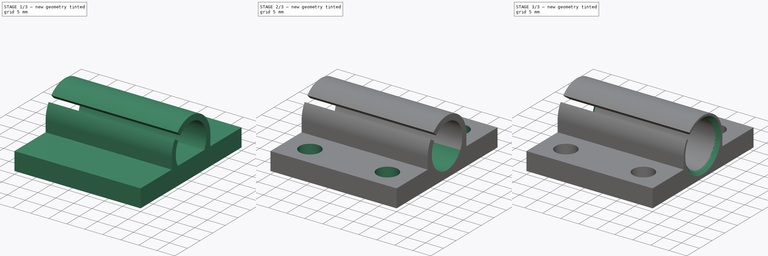
[diagram: build sequence overview — one tinted view per stage of 3, left to right]
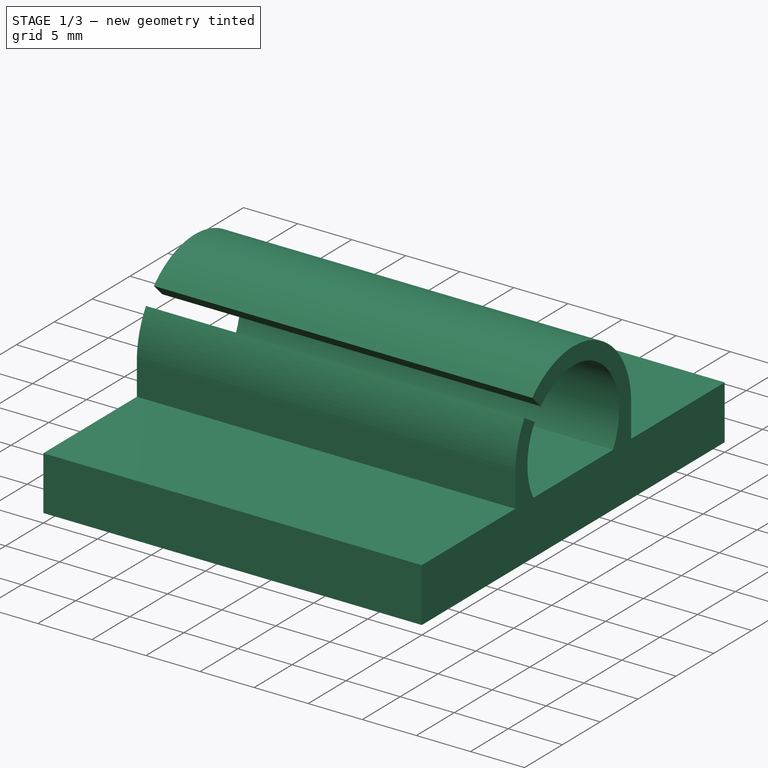
[diagram: stage 1 of 3 — iso view after this stage's code; geometry added in this stage tinted green]
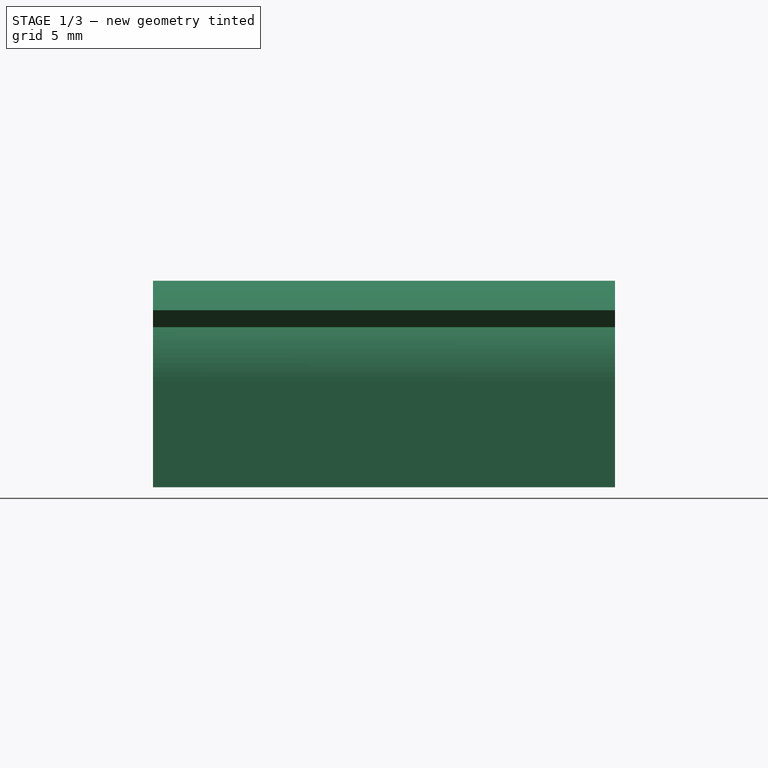
[diagram: stage 1 of 3 — front view after this stage's code; geometry added in this stage tinted green]
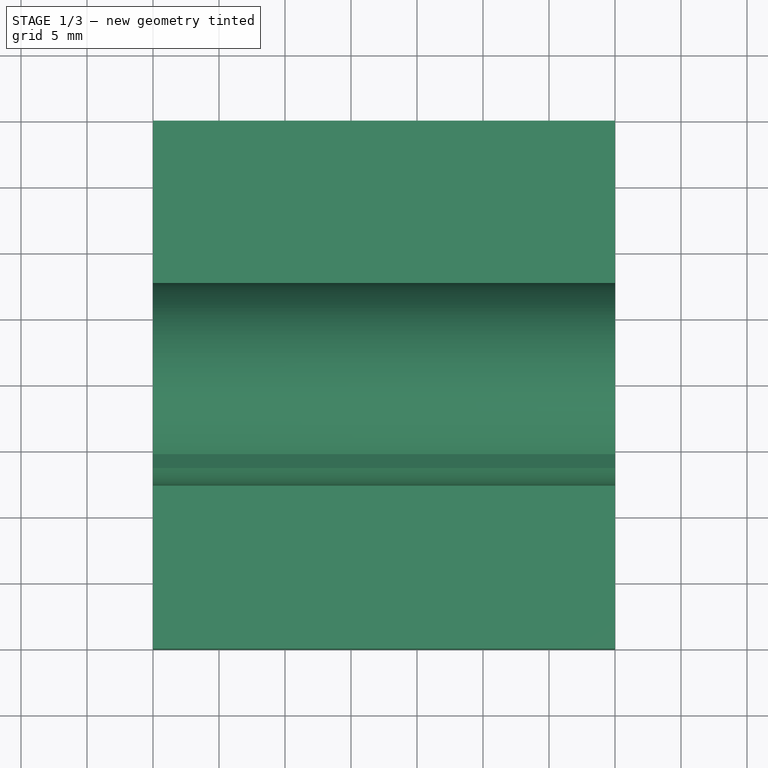
[diagram: stage 1 of 3 — top view after this stage's code; geometry added in this stage tinted green]
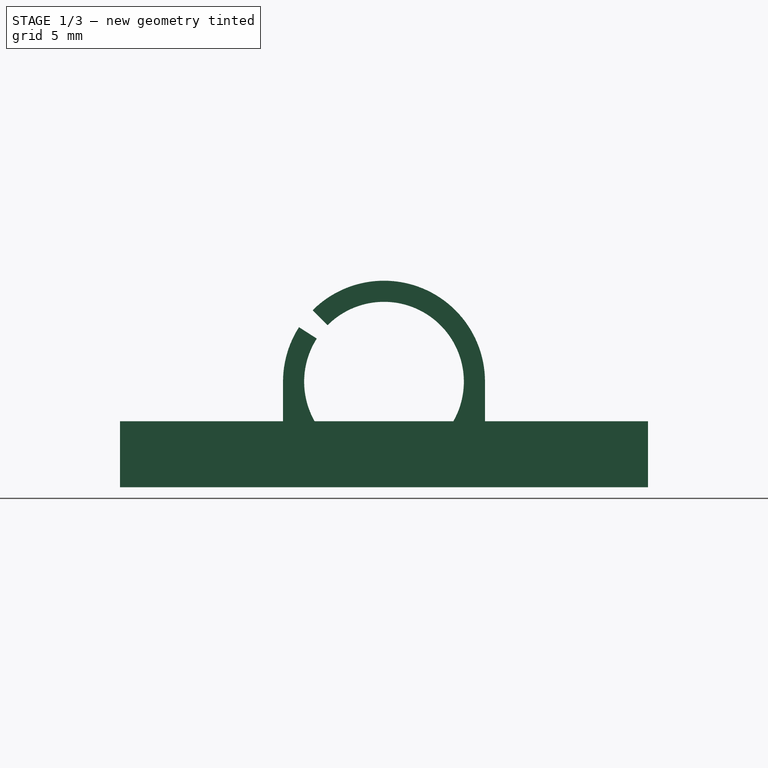
[diagram: stage 1 of 3 — right view after this stage's code; geometry added in this stage tinted green]
FCSTD DOCUMENT  (FreeCAD 0.14R3702 (Git))
Label: y-carrier
License: CC-BY 3.0
LicenseURL: http://creativecommons.org/licenses/by/3.0/
objects: Sketcher::SketchObject×5, PartDesign::Pocket×3, PartDesign::Chamfer×2, Part::Box×1, PartDesign::Pad×1
note: 16 computed .brp shape members not serialized (recipe doc carries the construction recipe); baked Part::Feature solids carry a one-line shape summary decoded from their .brp

FEATURE [Part::Box] Box  label="Cube"
  Height = 5
  Length = 35
  Width = 40
FEATURE [Sketcher::SketchObject] Sketch
  ExternalGeometry = -> [Box]
  Placement = pos=(35,0,0) rot=(0.57735,0.57735,0.57735;2.0944rad)
  Support = -> Box [Face2]
  sketch-geometry (10):
    g0: LineSegment [constr] StartX=0 StartY=8 StartZ=0 EndX=20 EndY=8 EndZ=0
    g1: LineSegment [constr] StartX=40 StartY=8 StartZ=0 EndX=20 EndY=8 EndZ=0
    g2: ArcOfCircle CenterX=20 CenterY=8 CenterZ=0 NormalX=0 NormalY=0 NormalZ=1 Radius=6.05 StartAngle=2.57149 EndAngle=8.63938
    g3: ArcOfCircle CenterX=20 CenterY=8 CenterZ=0 NormalX=0 NormalY=0 NormalZ=1 Radius=7.65 StartAngle=2.57149 EndAngle=3.14159
    g4: LineSegment StartX=13.5599 StartY=12.1289 StartZ=0 EndX=14.9068 EndY=11.2653 EndZ=0
    g5: LineSegment StartX=12.35 StartY=0 StartZ=0 EndX=12.35 EndY=7.99999 EndZ=0
    g6: LineSegment StartX=15.722 StartY=12.278 StartZ=0 EndX=14.5906 EndY=13.4094 EndZ=0
    g7: ArcOfCircle CenterX=20 CenterY=8 CenterZ=0 NormalX=0 NormalY=0 NormalZ=1 Radius=7.65 StartAngle=6.28318 EndAngle=8.63938
    g8: LineSegment StartX=27.65 StartY=7.99999 StartZ=0 EndX=27.65 EndY=0 EndZ=0
    g9: LineSegment StartX=12.35 StartY=0 StartZ=0 EndX=27.65 EndY=0 EndZ=0
  constraints (31):
    c: PointOnObject(g0,g-2)
    c: Horizontal(g0)
    c: PointOnObject(g1,g-3)
    c: Horizontal(g1)
    c: Equal(g1,g0)
    c: Coincident(g2,g0)
    c: Radius(g2) = 6.05
    c: Coincident(g1,g0)
    c: Coincident(g3,g0)
    c: Distance(g2,g2) = 1.3
    c: Coincident(g4,g3)
    c: Coincident(g4,g2)
    c: Perpendicular(g4,g2)
    c: Distance(g4) = 1.6
    c: Vertical(g5)
    c: Tangent(g3,g5)
    c: Coincident(g3,g5)
    c: Coincident(g6,g2)
    c: Coincident(g7,g0)
    c: Coincident(g7,g6)
    c: Equal(g6,g4)
    c: Perpendicular(g6,g2)
    c: Coincident(g8,g7)
    c: Tangent(g7,g8)
    c: Vertical(g8)
    c: Angle(g-4,g6) = 2.35619
    c: Coincident(g9,g5)
    c: Coincident(g9,g8)
    c: Horizontal(g9)
    c: PointOnObject(g5,g-1)
    c: Distance(g0,g9) = 8
FEATURE [PartDesign::Pad] Pad
  Length = 35
  Length2 = 100
  Reversed = true
  Sketch = -> Sketch
  Type = 0
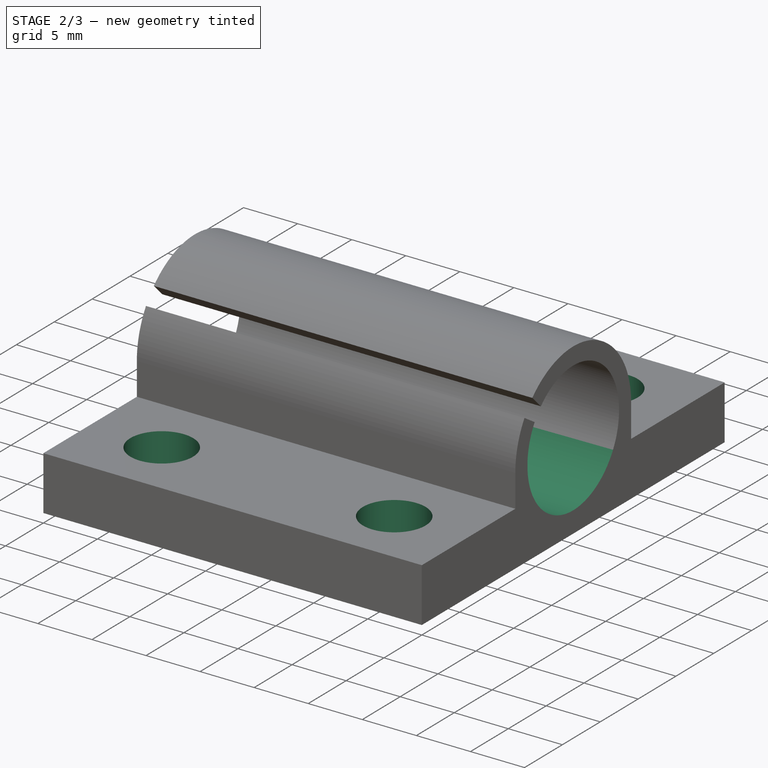
[diagram: stage 2 of 3 — iso view after this stage's code; geometry added in this stage tinted green]
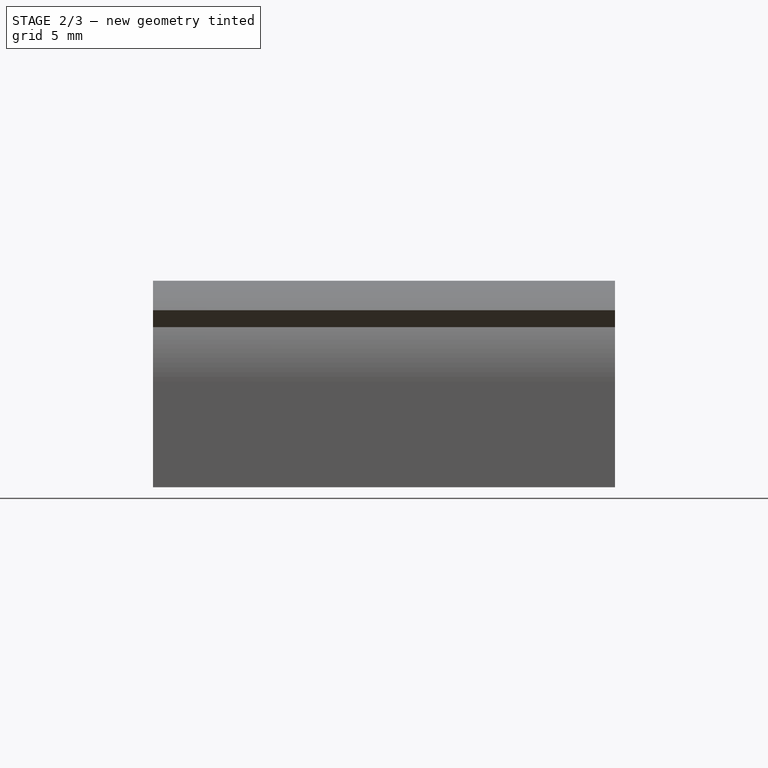
[diagram: stage 2 of 3 — front view after this stage's code; geometry added in this stage tinted green]
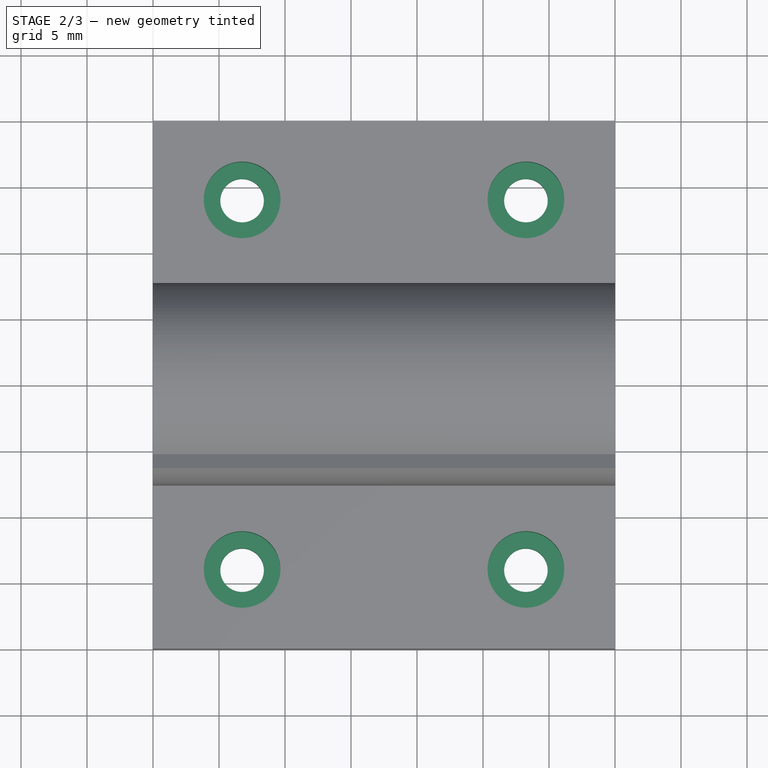
[diagram: stage 2 of 3 — top view after this stage's code; geometry added in this stage tinted green]
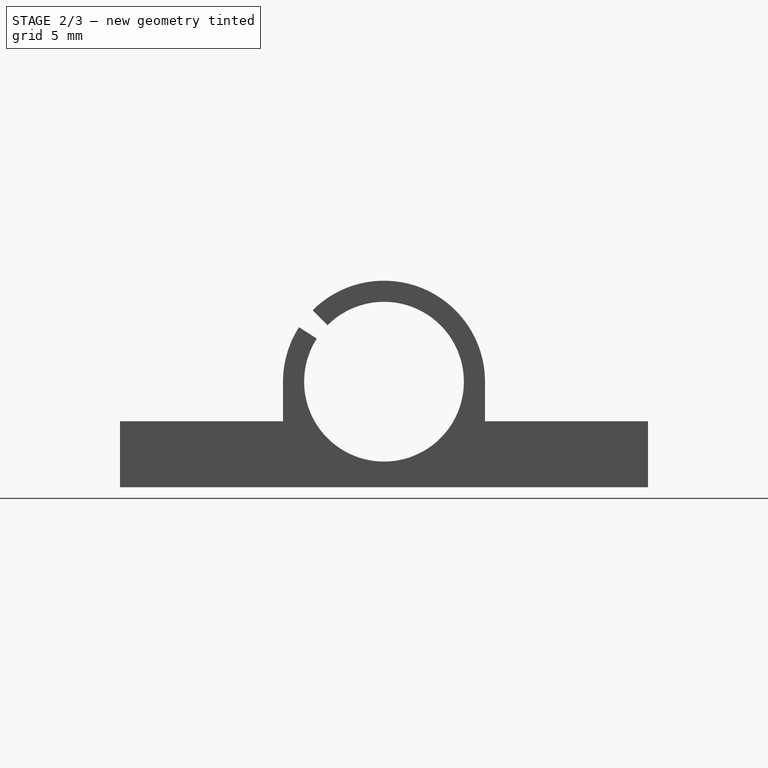
[diagram: stage 2 of 3 — right view after this stage's code; geometry added in this stage tinted green]
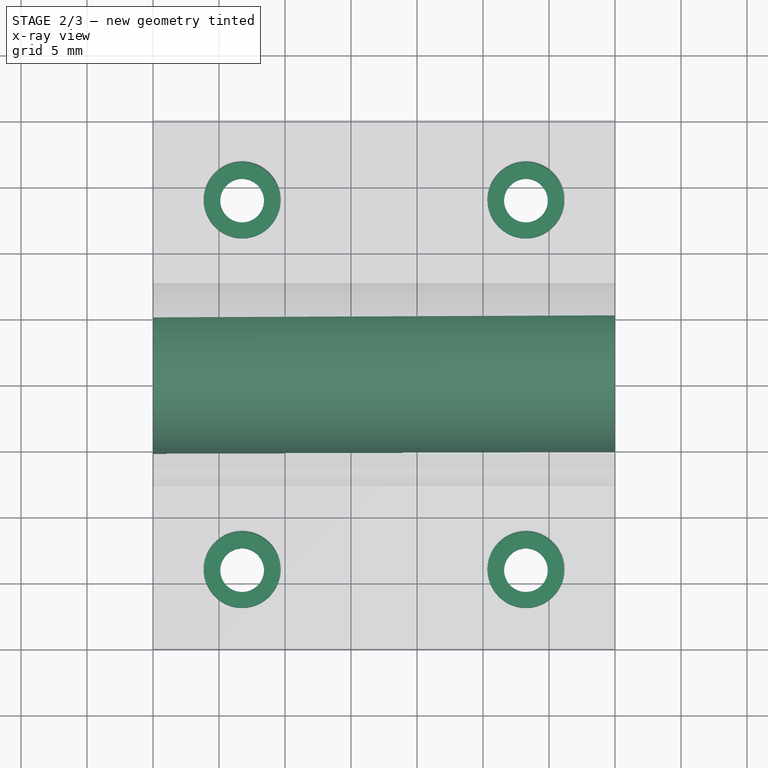
[diagram: stage 2 of 3 — x-ray composite at the top view; earlier geometry ghosted, this stage's added geometry solid]
FEATURE [Sketcher::SketchObject] Sketch001
  ExternalGeometry = -> [Pad]
  Placement = pos=(35,0,0) rot=(0.57735,0.57735,0.57735;2.0944rad)
  Support = -> Pad [Face7]
  sketch-geometry (1):
    g0: Circle CenterX=20 CenterY=8 CenterZ=0 NormalX=0 NormalY=0 NormalZ=1 Radius=6.05
  constraints (2):
    c: Coincident(g0,g-3)
    c: PointOnObject(g-3,g0)
FEATURE [PartDesign::Pocket] Pocket
  Length = 5
  Sketch = -> Sketch001
  Type = 1
FEATURE [Sketcher::SketchObject] Sketch002
  Placement = pos=(0,0,0) rot=(1,0,0;3.14159rad)
  Support = -> Pocket [Face2]
  sketch-geometry (7):
    g0: LineSegment [constr] StartX=6.75 StartY=-6 StartZ=0 EndX=28.25 EndY=-6 EndZ=0
    g1: LineSegment [constr] StartX=6.75 StartY=-6 StartZ=0 EndX=6.75 EndY=-34 EndZ=0
    g2: LineSegment [constr] StartX=6.75 StartY=-34 StartZ=0 EndX=28.25 EndY=-34 EndZ=0
    g3: Circle CenterX=6.75 CenterY=-6 CenterZ=0 NormalX=0 NormalY=0 NormalZ=1 Radius=1.65
    g4: Circle CenterX=28.25 CenterY=-6 CenterZ=0 NormalX=0 NormalY=0 NormalZ=1 Radius=1.65
    g5: Circle CenterX=6.75 CenterY=-34 CenterZ=0 NormalX=0 NormalY=0 NormalZ=1 Radius=1.65
    g6: Circle CenterX=28.25 CenterY=-34 CenterZ=0 NormalX=0 NormalY=0 NormalZ=1 Radius=1.65
  constraints (18):
    c: Horizontal(g0)
    c: Coincident(g1,g0)
    c: Vertical(g1)
    c: Coincident(g2,g1)
    c: Horizontal(g2)
    c: Equal(g0,g2)
    c: Coincident(g3,g0)
    c: Coincident(g4,g0)
    c: Coincident(g5,g1)
    c: Coincident(g6,g2)
    c: Equal(g6,g4)
    c: Equal(g4,g3)
    c: Equal(g3,g5)
    c: Radius(g3) = 1.65
    c: Distance(g0) = 21.5
    c: Distance(g1) = 28
    c: DistanceY(g-1,g0) = -6
    c: DistanceX(g-2,g0) = 6.75
FEATURE [PartDesign::Pocket] Pocket001
  Length = 5
  Sketch = -> Sketch002
  Type = 1
FEATURE [Sketcher::SketchObject] Sketch003
  Placement = pos=(0,0,5) rot=(0,0,1;0rad)
  Support = -> Pocket001 [Face4]
  sketch-geometry (4):
    g0: Circle CenterX=6.75 CenterY=34 CenterZ=0 NormalX=0 NormalY=0 NormalZ=1 Radius=2.9
    g1: Circle CenterX=28.25 CenterY=34 CenterZ=0 NormalX=0 NormalY=0 NormalZ=1 Radius=2.9
    g2: Circle CenterX=6.75 CenterY=6 CenterZ=0 NormalX=0 NormalY=0 NormalZ=1 Radius=2.9
    g3: Circle CenterX=28.25 CenterY=6 CenterZ=0 NormalX=0 NormalY=0 NormalZ=1 Radius=2.9
  constraints (4):
    c: Equal(g0,g1)
    c: Equal(g1,g2)
    c: Equal(g2,g3)
    c: Radius(g0) = 2.9
FEATURE [PartDesign::Pocket] Pocket002
  Length = 3
  Sketch = -> Sketch003
  Type = 0
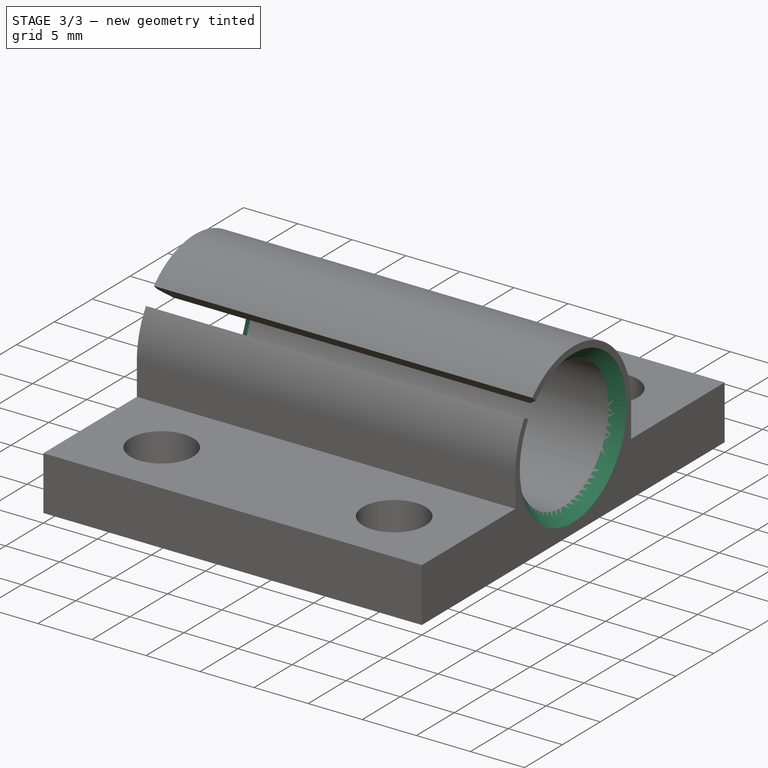
[diagram: stage 3 of 3 — iso view after this stage's code; geometry added in this stage tinted green]
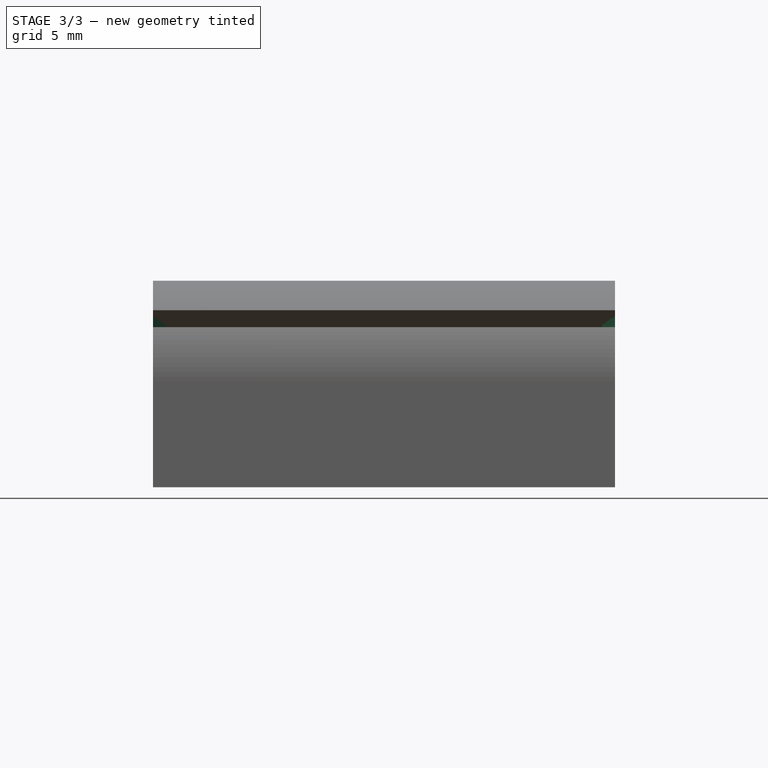
[diagram: stage 3 of 3 — front view after this stage's code; geometry added in this stage tinted green]
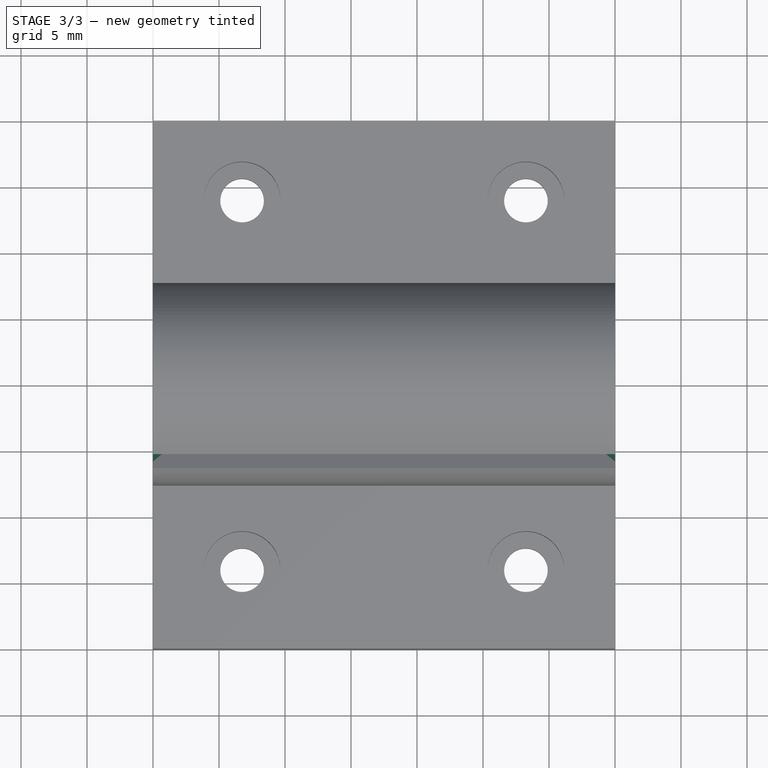
[diagram: stage 3 of 3 — top view after this stage's code; geometry added in this stage tinted green]
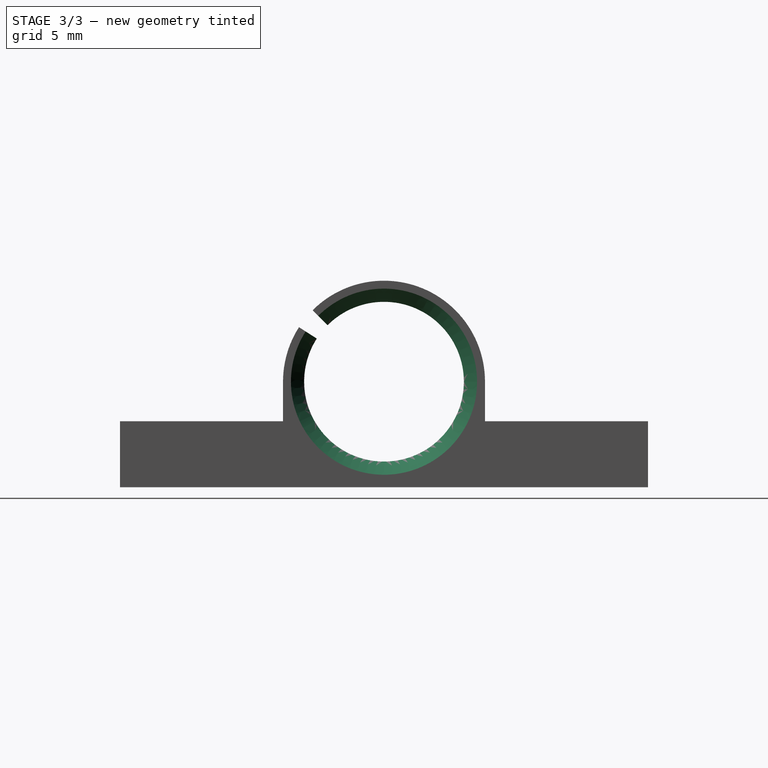
[diagram: stage 3 of 3 — right view after this stage's code; geometry added in this stage tinted green]
FEATURE [PartDesign::Chamfer] Chamfer
  Base = -> Pocket002 [Edge24]
  Size = 1
FEATURE [PartDesign::Chamfer] Chamfer001
  Base = -> Chamfer [Edge55]
  Size = 1
FEATURE [Sketcher::SketchObject] Sketch004
  ExternalGeometry = -> [Chamfer001]
  Placement = pos=(35,0,0) rot=(0.57735,0.57735,0.57735;2.0944rad)
  Support = -> Chamfer001 [Face13]
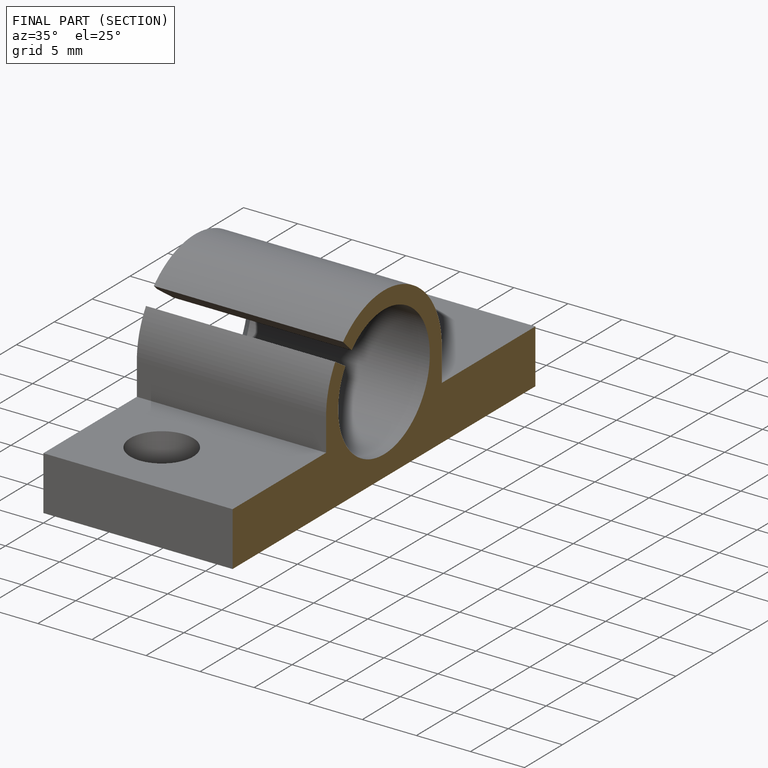
[diagram: finished part — half-section view (interior)]
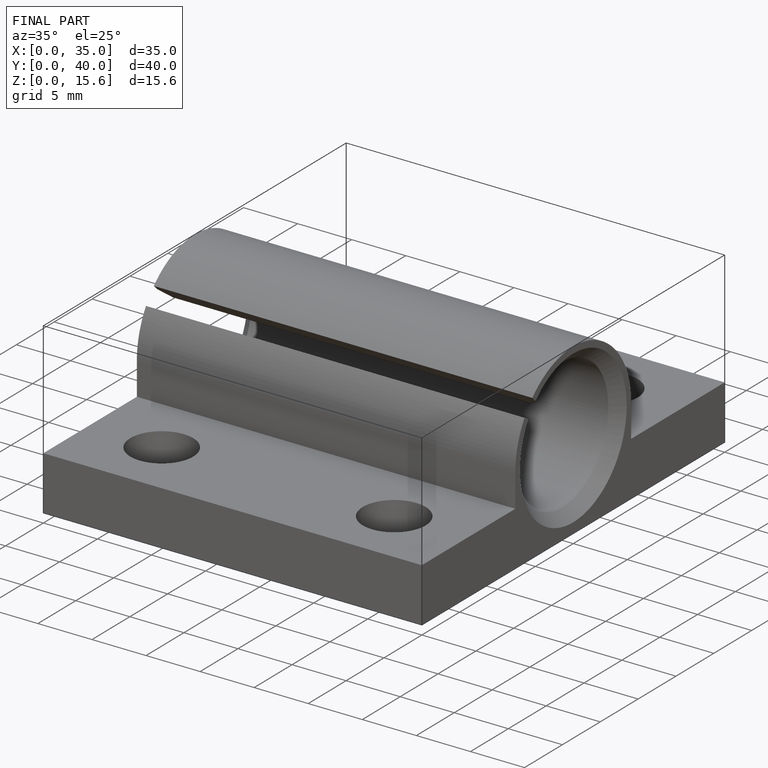
[diagram: finished part — iso view with bounding-box wireframe]
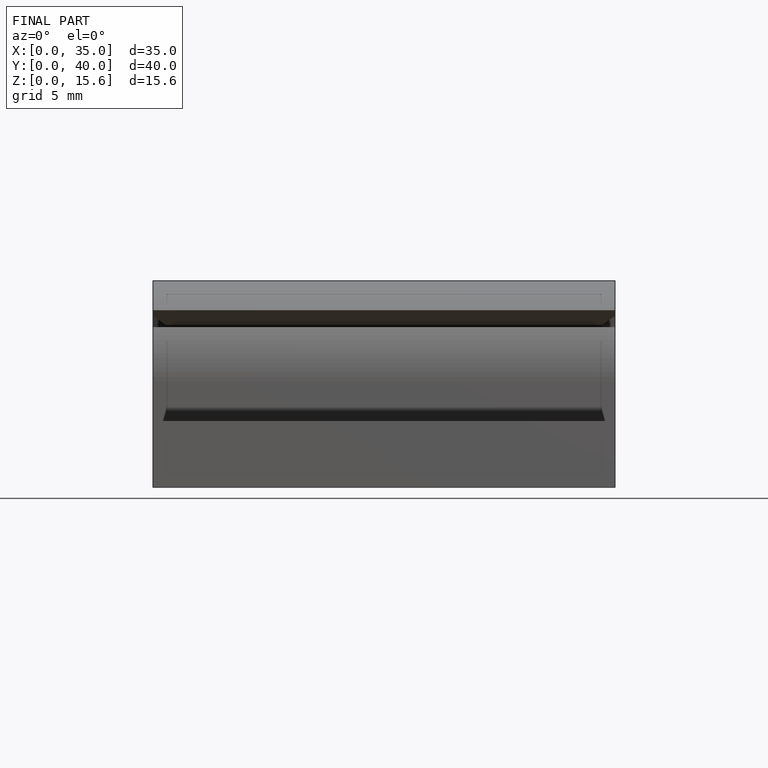
[diagram: finished part — front view with bounding-box wireframe]
